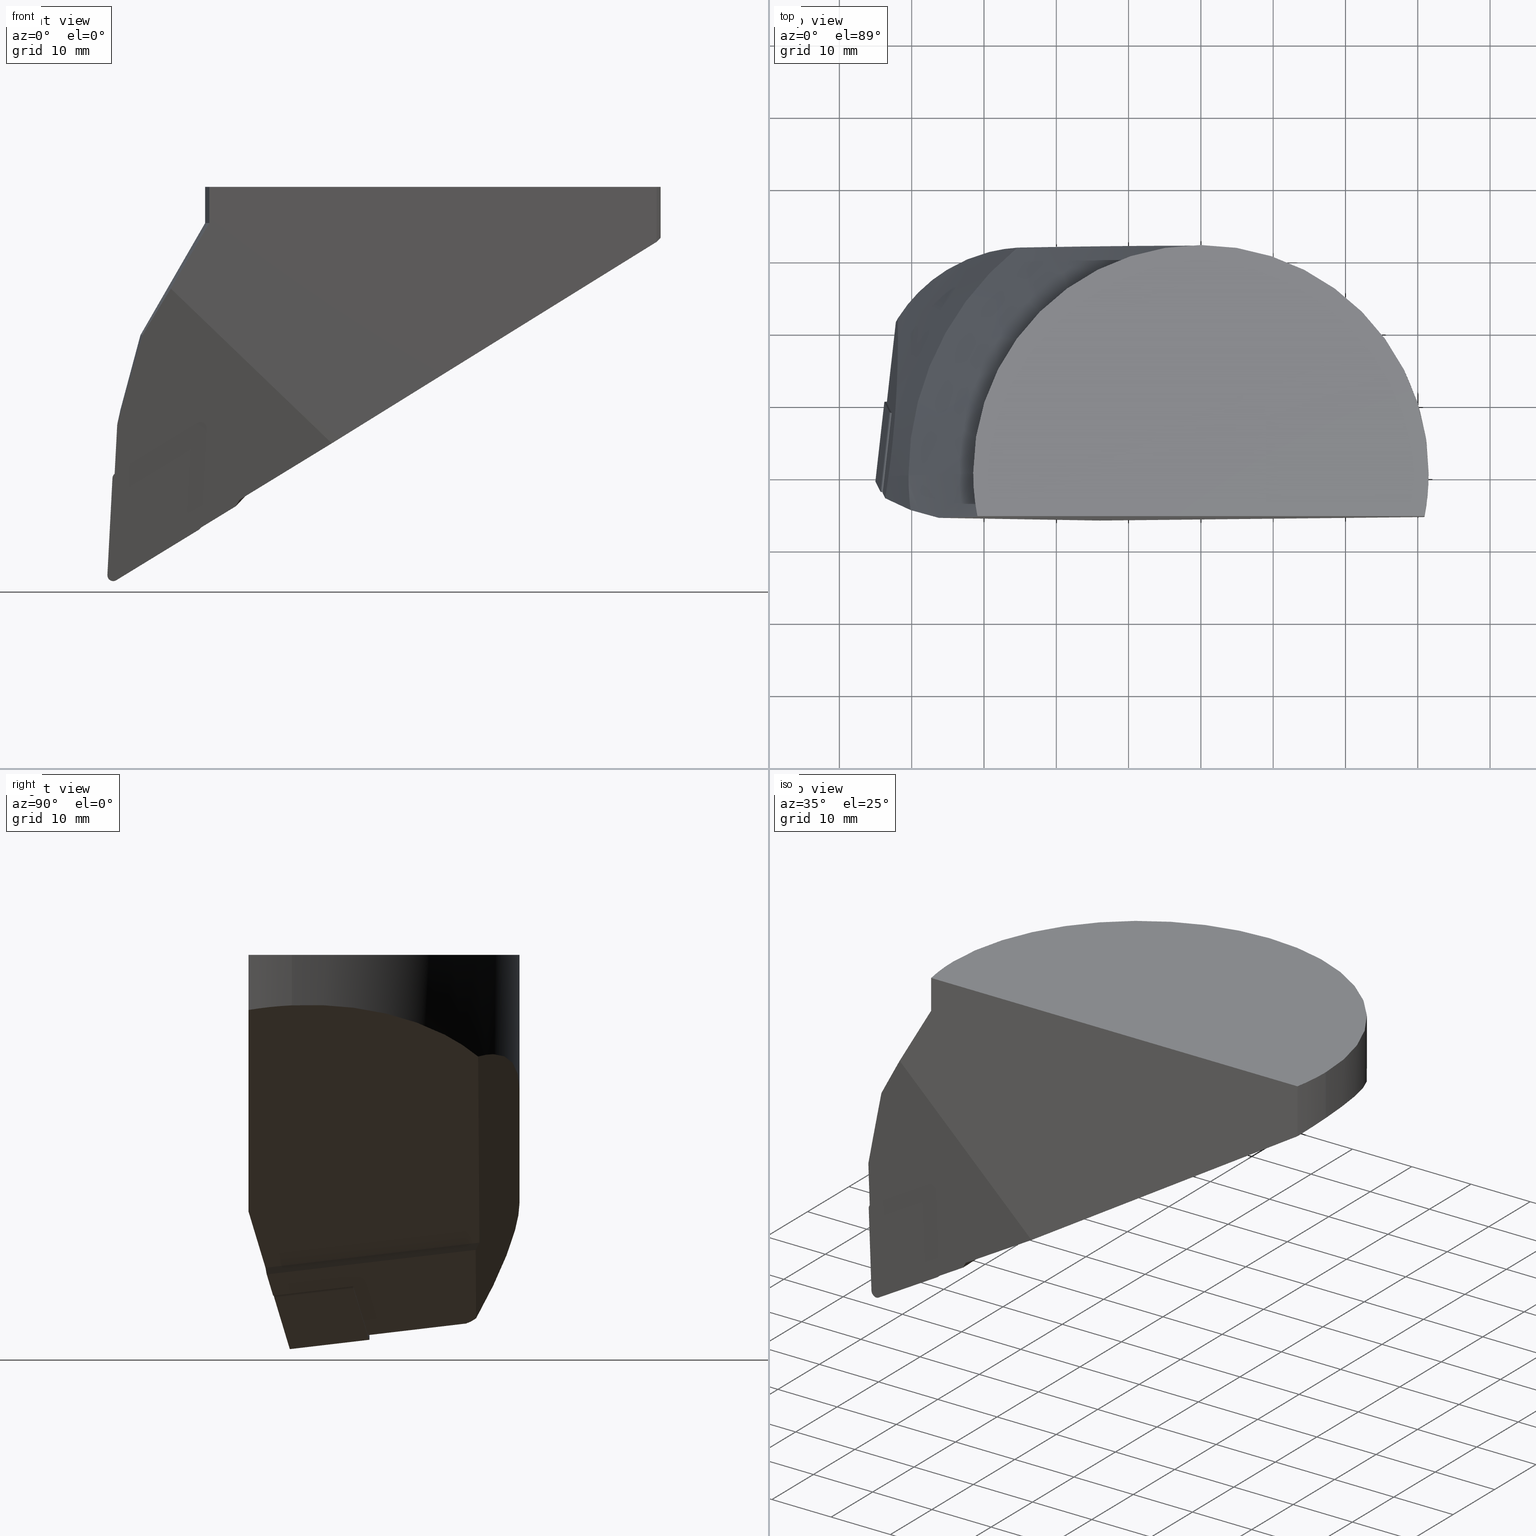
[diagram: canonical four-view strip — front | top / right | iso, engineering-drawing reading convention]
A machine part, canonical four-view strip (front | top / right | iso — engineering-drawing reading convention). The complete STEP part file that produces these views, byte-faithful:
ISO-10303-21;
HEADER;
FILE_DESCRIPTION((''),'1');
FILE_NAME('//Big_tech03/bigt/Translate/11_3D_Field/02_Step_Field/91_\X2\65CB524A30C430FC30EB\X0\/F\X2\30AB30FC30C830EA30C330B8\X0\/F63-DDJNL-45055-15.stp','2012-12-17T05:40:42',(''),(''),'Spatial Interop R18','Kubotek KeyCreator V8.5.1 (14335)',' ');
FILE_SCHEMA(('CONFIG_CONTROL_DESIGN'));
ENDSEC;
DATA;
#1=DESIGN_CONTEXT('',#27,'design');
#2=APPLICATION_PROTOCOL_DEFINITION('INTERNATIONAL STANDARD','config_control_design',1994,#27);
#3=PRODUCT_CATEGORY_RELATIONSHIP('NONE','NONE',#28,#29);
#4=DATE_AND_TIME(#30,#31);
#5=DATE_TIME_ROLE('creation_date');
#6=DATE_TIME_ROLE('classification_date');
#7=PERSON_AND_ORGANIZATION_ROLE('creator');
#8=PERSON_AND_ORGANIZATION_ROLE('design_supplier');
#9=PERSON_AND_ORGANIZATION_ROLE('classification_officer');
#10=PERSON_AND_ORGANIZATION_ROLE('design_owner');
#11=APPROVAL_PERSON_ORGANIZATION(#32,#33,#34);
#12=APPROVAL_DATE_TIME(#4,#33);
#13=CC_DESIGN_APPROVAL(#33,(#35,#36,#37));
#14=CC_DESIGN_DATE_AND_TIME_ASSIGNMENT(#4,#5,(#37));
#15=CC_DESIGN_DATE_AND_TIME_ASSIGNMENT(#4,#6,(#35));
#16=CC_DESIGN_PERSON_AND_ORGANIZATION_ASSIGNMENT(#32,#10,(#38));
#17=CC_DESIGN_PERSON_AND_ORGANIZATION_ASSIGNMENT(#32,#7,(#37));
#18=CC_DESIGN_PERSON_AND_ORGANIZATION_ASSIGNMENT(#32,#7,(#36));
#19=CC_DESIGN_PERSON_AND_ORGANIZATION_ASSIGNMENT(#32,#8,(#36));
#20=CC_DESIGN_SECURITY_CLASSIFICATION(#35,(#36));
#21=CC_DESIGN_PERSON_AND_ORGANIZATION_ASSIGNMENT(#32,#9,(#35));
#22=SHAPE_DEFINITION_REPRESENTATION(#39,#40);
#23= (GEOMETRIC_REPRESENTATION_CONTEXT(3)GLOBAL_UNCERTAINTY_ASSIGNED_CONTEXT((#43))GLOBAL_UNIT_ASSIGNED_CONTEXT((#45,#46,#47))REPRESENTATION_CONTEXT('NONE','WORKSPACE'));
#27=APPLICATION_CONTEXT('CONFIGURATION CONTROLLED 3D DESIGNS OF MECHANICAL PARTS AND ASSEMBLIES');
#28=PRODUCT_CATEGORY('part','NONE');
#29=PRODUCT_RELATED_PRODUCT_CATEGORY('detail',' ',(#38));
#30=CALENDAR_DATE(2012,17,11);
#31=LOCAL_TIME(14,40,42.0,#49);
#32=PERSON_AND_ORGANIZATION(#50,#51);
#33=APPROVAL(#52,'SOLID MODEL');
#34=APPROVAL_ROLE('APPROVED');
#35=SECURITY_CLASSIFICATION('','',#53);
#36=PRODUCT_DEFINITION_FORMATION_WITH_SPECIFIED_SOURCE(' ','NONE',#38,.NOT_KNOWN.);
#37=PRODUCT_DEFINITION('NONE','NONE',#36,#1);
#38=PRODUCT('1','1','PART-1-DESC',(#54));
#39=PRODUCT_DEFINITION_SHAPE('NONE','NONE',#37);
#40=ADVANCED_BREP_SHAPE_REPRESENTATION('1',(#55,#56),#23);
#43=UNCERTAINTY_MEASURE_WITH_UNIT(LENGTH_MEASURE(1.0E-006),#45,'','');
#45= (CONVERSION_BASED_UNIT('MILLIMETRE',#59)LENGTH_UNIT()NAMED_UNIT(#62));
#46= (NAMED_UNIT(#64)PLANE_ANGLE_UNIT()SI_UNIT($,.RADIAN.));
#47= (NAMED_UNIT(#64)SOLID_ANGLE_UNIT()SI_UNIT($,.STERADIAN.));
#49=COORDINATED_UNIVERSAL_TIME_OFFSET(9,0,.AHEAD.);
#50=PERSON('','UNSPECIFIED',$,$,$,$);
#51=ORGANIZATION('UNSPECIFIED','UNSPECIFIED','UNSPECIFIED');
#52=APPROVAL_STATUS('approved');
#53=SECURITY_CLASSIFICATION_LEVEL('unclassified');
#54=MECHANICAL_CONTEXT('',#27,'mechanical');
#55=MANIFOLD_SOLID_BREP('1',#70);
#56=AXIS2_PLACEMENT_3D('',#71,#72,#73);
#59=LENGTH_MEASURE_WITH_UNIT(LENGTH_MEASURE(1.0),#74);
#62=DIMENSIONAL_EXPONENTS(1.0,0.0,0.0,0.0,0.0,0.0,0.0);
#64=DIMENSIONAL_EXPONENTS(0.0,0.0,0.0,0.0,0.0,0.0,0.0);
#70=CLOSED_SHELL('',(#75,#76,#77,#78,#79,#80,#81,#82,#83,#84,#85,#86,#87,#88,#89,#90,#91,#92,#93,#94,#95,#96,#97,#98,#99,#100,#101,#102,#103,#104));
#71=CARTESIAN_POINT('',(0.0,0.0,0.0));
#72=DIRECTION('',(0.0,0.0,1.0));
#73=DIRECTION('',(1.0,0.0,0.0));
#74= (NAMED_UNIT(#62)LENGTH_UNIT()SI_UNIT(.MILLI.,.METRE.));
#75=ADVANCED_FACE('',(#106),#107,.T.);
#76=ADVANCED_FACE('',(#108),#109,.T.);
#77=ADVANCED_FACE('',(#110),#111,.T.);
#78=ADVANCED_FACE('',(#112),#113,.T.);
#79=ADVANCED_FACE('',(#114),#115,.T.);
#80=ADVANCED_FACE('',(#116),#117,.T.);
#81=ADVANCED_FACE('',(#118),#119,.F.);
#82=ADVANCED_FACE('',(#120),#121,.F.);
#83=ADVANCED_FACE('',(#122),#123,.F.);
#84=ADVANCED_FACE('',(#124),#125,.F.);
#85=ADVANCED_FACE('',(#126),#127,.F.);
#86=ADVANCED_FACE('',(#128),#129,.F.);
#87=ADVANCED_FACE('',(#130),#131,.F.);
#88=ADVANCED_FACE('',(#132),#133,.F.);
#89=ADVANCED_FACE('',(#134),#135,.F.);
#90=ADVANCED_FACE('',(#136),#137,.F.);
#91=ADVANCED_FACE('',(#138),#139,.T.);
#92=ADVANCED_FACE('',(#140),#141,.F.);
#93=ADVANCED_FACE('',(#142),#143,.F.);
#94=ADVANCED_FACE('',(#144),#145,.T.);
#95=ADVANCED_FACE('',(#146),#147,.T.);
#96=ADVANCED_FACE('',(#148),#149,.T.);
#97=ADVANCED_FACE('',(#150),#151,.T.);
#98=ADVANCED_FACE('',(#152),#153,.T.);
#99=ADVANCED_FACE('',(#154),#155,.T.);
#100=ADVANCED_FACE('',(#156),#157,.T.);
#101=ADVANCED_FACE('',(#158),#159,.T.);
#102=ADVANCED_FACE('',(#160),#161,.F.);
#103=ADVANCED_FACE('',(#162),#163,.F.);
#104=ADVANCED_FACE('',(#164),#165,.F.);
#106=FACE_OUTER_BOUND('',#166,.T.);
#107=CYLINDRICAL_SURFACE('',#167,0.79999999991267);
#108=FACE_OUTER_BOUND('',#168,.T.);
#109=PLANE('',#169);
#110=FACE_OUTER_BOUND('',#170,.T.);
#111=CYLINDRICAL_SURFACE('',#171,0.800000000088561);
#112=FACE_OUTER_BOUND('',#172,.T.);
#113=PLANE('',#173);
#114=FACE_OUTER_BOUND('',#174,.T.);
#115=CYLINDRICAL_SURFACE('',#175,0.8);
#116=FACE_OUTER_BOUND('',#176,.T.);
#117=PLANE('',#177);
#118=FACE_OUTER_BOUND('',#178,.T.);
#119=PLANE('',#179);
#120=FACE_OUTER_BOUND('',#180,.T.);
#121=CYLINDRICAL_SURFACE('',#181,0.79999999991267);
#122=FACE_OUTER_BOUND('',#182,.T.);
#123=PLANE('',#183);
#124=FACE_OUTER_BOUND('',#184,.T.);
#125=CYLINDRICAL_SURFACE('',#185,0.799999998553734);
#126=FACE_OUTER_BOUND('',#186,.T.);
#127=PLANE('',#187);
#128=FACE_OUTER_BOUND('',#188,.T.);
#129=CYLINDRICAL_SURFACE('',#189,0.800000000088561);
#130=FACE_OUTER_BOUND('',#190,.T.);
#131=PLANE('',#191);
#132=FACE_OUTER_BOUND('',#192,.T.);
#133=PLANE('',#193);
#134=FACE_OUTER_BOUND('',#194,.T.);
#135=PLANE('',#195);
#136=FACE_OUTER_BOUND('',#196,.T.);
#137=PLANE('',#197);
#138=FACE_OUTER_BOUND('',#198,.T.);
#139=CYLINDRICAL_SURFACE('',#199,1.2);
#140=FACE_OUTER_BOUND('',#200,.T.);
#141=PLANE('',#201);
#142=FACE_OUTER_BOUND('',#202,.T.);
#143=PLANE('',#203);
#144=FACE_OUTER_BOUND('',#204,.T.);
#145=CYLINDRICAL_SURFACE('',#205,20.0);
#146=FACE_OUTER_BOUND('',#206,.T.);
#147=CONICAL_SURFACE('',#207,32.7734697469781,0.5235987744017);
#148=FACE_OUTER_BOUND('',#208,.T.);
#149=CYLINDRICAL_SURFACE('',#209,31.5);
#150=FACE_OUTER_BOUND('',#210,.T.);
#151=CYLINDRICAL_SURFACE('',#211,31.5);
#152=FACE_OUTER_BOUND('',#212,.T.);
#153=CONICAL_SURFACE('',#213,41.4446882568336,0.261799387200851);
#154=FACE_OUTER_BOUND('',#214,.T.);
#155=CONICAL_SURFACE('',#215,40.9227443414967,0.261799387200848);
#156=FACE_OUTER_BOUND('',#216,.T.);
#157=CYLINDRICAL_SURFACE('',#217,31.5);
#158=FACE_OUTER_BOUND('',#218,.T.);
#159=CONICAL_SURFACE('',#219,32.7777316670796,0.523598774401699);
#160=FACE_OUTER_BOUND('',#220,.T.);
#161=PLANE('',#221);
#162=FACE_OUTER_BOUND('',#222,.T.);
#163=PLANE('',#223);
#164=FACE_OUTER_BOUND('',#224,.T.);
#165=PLANE('',#225);
#166=EDGE_LOOP('',(#226,#227,#228,#229));
#167=AXIS2_PLACEMENT_3D('',#230,#231,#232);
#168=EDGE_LOOP('',(#233,#234,#235,#236,#237,#238,#239,#240));
#169=AXIS2_PLACEMENT_3D('',#241,#242,#243);
#170=EDGE_LOOP('',(#244,#245,#246,#247));
#171=AXIS2_PLACEMENT_3D('',#248,#249,#250);
#172=EDGE_LOOP('',(#251,#252,#253,#254));
#173=AXIS2_PLACEMENT_3D('',#255,#256,#257);
#174=EDGE_LOOP('',(#258,#259,#260,#261));
#175=AXIS2_PLACEMENT_3D('',#262,#263,#264);
#176=EDGE_LOOP('',(#265,#266,#267,#268));
#177=AXIS2_PLACEMENT_3D('',#269,#270,#271);
#178=EDGE_LOOP('',(#272,#273,#274,#275,#276,#277,#278,#279,#280,#281));
#179=AXIS2_PLACEMENT_3D('',#282,#283,#284);
#180=EDGE_LOOP('',(#285,#286,#287,#288));
#181=AXIS2_PLACEMENT_3D('',#289,#290,#291);
#182=EDGE_LOOP('',(#292,#293,#294,#295));
#183=AXIS2_PLACEMENT_3D('',#296,#297,#298);
#184=EDGE_LOOP('',(#299,#300,#301,#302));
#185=AXIS2_PLACEMENT_3D('',#303,#304,#305);
#186=EDGE_LOOP('',(#306,#307,#308,#309));
#187=AXIS2_PLACEMENT_3D('',#310,#311,#312);
#188=EDGE_LOOP('',(#313,#314,#315,#316));
#189=AXIS2_PLACEMENT_3D('',#317,#318,#319);
#190=EDGE_LOOP('',(#320,#321,#322,#323,#324,#325,#326,#327));
#191=AXIS2_PLACEMENT_3D('',#328,#329,#330);
#192=EDGE_LOOP('',(#331,#332,#333,#334,#335,#336,#337,#338,#339,#340,#341,#342));
#193=AXIS2_PLACEMENT_3D('',#343,#344,#345);
#194=EDGE_LOOP('',(#346,#347,#348,#349));
#195=AXIS2_PLACEMENT_3D('',#350,#351,#352);
#196=EDGE_LOOP('',(#353,#354,#355,#356,#357,#358,#359,#360));
#197=AXIS2_PLACEMENT_3D('',#361,#362,#363);
#198=EDGE_LOOP('',(#364,#365,#366,#367));
#199=AXIS2_PLACEMENT_3D('',#368,#369,#370);
#200=EDGE_LOOP('',(#371,#372,#373,#374,#375,#376));
#201=AXIS2_PLACEMENT_3D('',#377,#378,#379);
#202=EDGE_LOOP('',(#380,#381,#382,#383,#384,#385));
#203=AXIS2_PLACEMENT_3D('',#386,#387,#388);
#204=EDGE_LOOP('',(#389,#390,#391,#392,#393,#394,#395));
#205=AXIS2_PLACEMENT_3D('',#396,#397,#398);
#206=EDGE_LOOP('',(#399,#400,#401,#402,#403));
#207=AXIS2_PLACEMENT_3D('',#404,#405,#406);
#208=EDGE_LOOP('',(#407,#408,#409,#410));
#209=AXIS2_PLACEMENT_3D('',#411,#412,#413);
#210=EDGE_LOOP('',(#414,#415,#416,#417,#418,#419,#420));
#211=AXIS2_PLACEMENT_3D('',#421,#422,#423);
#212=EDGE_LOOP('',(#424,#425,#426,#427));
#213=AXIS2_PLACEMENT_3D('',#428,#429,#430);
#214=EDGE_LOOP('',(#431,#432,#433,#434));
#215=AXIS2_PLACEMENT_3D('',#435,#436,#437);
#216=EDGE_LOOP('',(#438,#439,#440,#441));
#217=AXIS2_PLACEMENT_3D('',#442,#443,#444);
#218=EDGE_LOOP('',(#445,#446,#447,#448,#449));
#219=AXIS2_PLACEMENT_3D('',#450,#451,#452);
#220=EDGE_LOOP('',(#453,#454,#455,#456,#457,#458));
#221=AXIS2_PLACEMENT_3D('',#459,#460,#461);
#222=EDGE_LOOP('',(#462,#463,#464,#465));
#223=AXIS2_PLACEMENT_3D('',#466,#467,#468);
#224=EDGE_LOOP('',(#469,#470,#471,#472));
#225=AXIS2_PLACEMENT_3D('',#473,#474,#475);
#226=ORIENTED_EDGE('',*,*,#476,.F.);
#227=ORIENTED_EDGE('',*,*,#477,.T.);
#228=ORIENTED_EDGE('',*,*,#478,.T.);
#229=ORIENTED_EDGE('',*,*,#479,.T.);
#230=CARTESIAN_POINT('',(-42.2867356888013,8.96139082365023,-39.0195481658553));
#231=DIRECTION('',(0.111468932180646,0.986981129763168,0.115943635659434));
#232=DIRECTION('',(-0.52665651322258,-0.0402689242801202,0.849123860704407));
#233=ORIENTED_EDGE('',*,*,#480,.F.);
#234=ORIENTED_EDGE('',*,*,#481,.F.);
#235=ORIENTED_EDGE('',*,*,#482,.F.);
#236=ORIENTED_EDGE('',*,*,#483,.F.);
#237=ORIENTED_EDGE('',*,*,#484,.F.);
#238=ORIENTED_EDGE('',*,*,#485,.F.);
#239=ORIENTED_EDGE('',*,*,#486,.F.);
#240=ORIENTED_EDGE('',*,*,#477,.F.);
#241=CARTESIAN_POINT('',(-40.1349317521262,9.72640476037006,-47.6005591111563));
#242=DIRECTION('',(0.111468932180646,0.986981129763168,0.115943635659434));
#243=DIRECTION('',(-2.47510750074666E-018,-0.11667073712445,0.993170649535535));
#244=ORIENTED_EDGE('',*,*,#487,.F.);
#245=ORIENTED_EDGE('',*,*,#488,.T.);
#246=ORIENTED_EDGE('',*,*,#489,.F.);
#247=ORIENTED_EDGE('',*,*,#483,.T.);
#248=CARTESIAN_POINT('',(-31.5712593598917,8.50861803219409,-45.4672026550503));
#249=DIRECTION('',(0.111468932180646,0.986981129763168,0.115943635659434));
#250=DIRECTION('',(0.526656513222572,0.0402689242801216,-0.849123860704411));
#251=ORIENTED_EDGE('',*,*,#490,.T.);
#252=ORIENTED_EDGE('',*,*,#491,.F.);
#253=ORIENTED_EDGE('',*,*,#484,.T.);
#254=ORIENTED_EDGE('',*,*,#489,.T.);
#255=CARTESIAN_POINT('',(-31.149934149267,8.54083317162176,-46.146501743689));
#256=DIRECTION('',(0.526656513222578,0.0402689242801206,-0.849123860704408));
#257=DIRECTION('',(-0.849813162933969,0.0,-0.52708404273338));
#258=ORIENTED_EDGE('',*,*,#492,.T.);
#259=ORIENTED_EDGE('',*,*,#493,.F.);
#260=ORIENTED_EDGE('',*,*,#485,.T.);
#261=ORIENTED_EDGE('',*,*,#491,.T.);
#262=CARTESIAN_POINT('',(-42.9908652335308,10.6186277213044,-52.4499789799973));
#263=DIRECTION('',(0.111468932180646,0.986981129763168,0.115943635659434));
#264=DIRECTION('',(-0.99240844672796,0.104455644609549,0.0649191279377818));
#265=ORIENTED_EDGE('',*,*,#494,.T.);
#266=ORIENTED_EDGE('',*,*,#478,.F.);
#267=ORIENTED_EDGE('',*,*,#486,.T.);
#268=ORIENTED_EDGE('',*,*,#493,.T.);
#269=CARTESIAN_POINT('',(-43.7847919909132,10.7021922369921,-52.398043677647));
#270=DIRECTION('',(-0.99240844672796,0.10445564460955,0.0649191279377771));
#271=DIRECTION('',(0.0652762184737183,0.0,0.997867233303996));
#272=ORIENTED_EDGE('',*,*,#479,.F.);
#273=ORIENTED_EDGE('',*,*,#494,.F.);
#274=ORIENTED_EDGE('',*,*,#492,.F.);
#275=ORIENTED_EDGE('',*,*,#490,.F.);
#276=ORIENTED_EDGE('',*,*,#488,.F.);
#277=ORIENTED_EDGE('',*,*,#495,.F.);
#278=ORIENTED_EDGE('',*,*,#496,.F.);
#279=ORIENTED_EDGE('',*,*,#497,.F.);
#280=ORIENTED_EDGE('',*,*,#498,.F.);
#281=ORIENTED_EDGE('',*,*,#499,.F.);
#282=CARTESIAN_POINT('',(-41.3733515886532,-1.23895559129873,-48.8886929033327));
#283=DIRECTION('',(0.111468932180646,0.986981129763168,0.115943635659434));
#284=DIRECTION('',(-3.08228190069457E-018,-0.11667073712445,0.993170649535535));
#285=ORIENTED_EDGE('',*,*,#499,.T.);
#286=ORIENTED_EDGE('',*,*,#500,.F.);
#287=ORIENTED_EDGE('',*,*,#501,.F.);
#288=ORIENTED_EDGE('',*,*,#502,.F.);
#289=CARTESIAN_POINT('',(-43.5351877292246,-2.09279782969725,-40.3181168852409));
#290=DIRECTION('',(-0.111468932180646,-0.986981129763168,-0.115943635659434));
#291=DIRECTION('',(-0.526656513222582,-0.0402689242801199,0.849123860704405));
#292=ORIENTED_EDGE('',*,*,#498,.T.);
#293=ORIENTED_EDGE('',*,*,#503,.F.);
#294=ORIENTED_EDGE('',*,*,#504,.F.);
#295=ORIENTED_EDGE('',*,*,#500,.T.);
#296=CARTESIAN_POINT('',(-32.5369070666313,-4.23502265812108,-32.6560414722223));
#297=DIRECTION('',(-0.526656513222585,-0.0402689242801193,0.849123860704403));
#298=DIRECTION('',(0.849813162933964,3.57659895301403E-018,0.527084042733387));
#299=ORIENTED_EDGE('',*,*,#497,.T.);
#300=ORIENTED_EDGE('',*,*,#505,.F.);
#301=ORIENTED_EDGE('',*,*,#506,.F.);
#302=ORIENTED_EDGE('',*,*,#503,.T.);
#303=CARTESIAN_POINT('',(-32.1155818568149,-4.20280751875522,-33.3353405595578));
#304=DIRECTION('',(-0.111468932180646,-0.986981129763168,-0.115943635659434));
#305=DIRECTION('',(0.992408446727965,-0.104455644609561,-0.0649191279376823));
#306=ORIENTED_EDGE('',*,*,#496,.T.);
#307=ORIENTED_EDGE('',*,*,#507,.F.);
#308=ORIENTED_EDGE('',*,*,#508,.F.);
#309=ORIENTED_EDGE('',*,*,#505,.T.);
#310=CARTESIAN_POINT('',(-32.0257846428447,-2.62913513685027,-46.817706676792));
#311=DIRECTION('',(0.992408446739063,-0.104455644635682,-0.0649191277259921));
#312=DIRECTION('',(-0.0652762182609486,0.0,-0.997867233317914));
#313=ORIENTED_EDGE('',*,*,#495,.T.);
#314=ORIENTED_EDGE('',*,*,#509,.F.);
#315=ORIENTED_EDGE('',*,*,#510,.F.);
#316=ORIENTED_EDGE('',*,*,#507,.T.);
#317=CARTESIAN_POINT('',(-32.8197114003149,-2.54557062115339,-46.765771374436));
#318=DIRECTION('',(-0.111468932180646,-0.986981129763168,-0.115943635659434));
#319=DIRECTION('',(0.526656513222571,0.0402689242801219,-0.849123860704412));
#320=ORIENTED_EDGE('',*,*,#480,.T.);
#321=ORIENTED_EDGE('',*,*,#476,.T.);
#322=ORIENTED_EDGE('',*,*,#502,.T.);
#323=ORIENTED_EDGE('',*,*,#511,.F.);
#324=ORIENTED_EDGE('',*,*,#512,.T.);
#325=ORIENTED_EDGE('',*,*,#513,.T.);
#326=ORIENTED_EDGE('',*,*,#514,.T.);
#327=ORIENTED_EDGE('',*,*,#515,.T.);
#328=CARTESIAN_POINT('',(-42.763103545582,9.56168043469738,-39.2346902608723));
#329=DIRECTION('',(0.992405994765367,-0.10444987619445,-0.0649658750170119));
#330=DIRECTION('',(-0.0653231828941872,1.15962657470325E-018,-0.997864159981995));
#331=ORIENTED_EDGE('',*,*,#501,.T.);
#332=ORIENTED_EDGE('',*,*,#504,.T.);
#333=ORIENTED_EDGE('',*,*,#506,.T.);
#334=ORIENTED_EDGE('',*,*,#508,.T.);
#335=ORIENTED_EDGE('',*,*,#510,.T.);
#336=ORIENTED_EDGE('',*,*,#516,.T.);
#337=ORIENTED_EDGE('',*,*,#517,.T.);
#338=ORIENTED_EDGE('',*,*,#518,.T.);
#339=ORIENTED_EDGE('',*,*,#519,.T.);
#340=ORIENTED_EDGE('',*,*,#520,.T.);
#341=ORIENTED_EDGE('',*,*,#521,.T.);
#342=ORIENTED_EDGE('',*,*,#511,.T.);
#343=CARTESIAN_POINT('',(-29.3810164501964,-4.3997327054566,-34.2880245251443));
#344=DIRECTION('',(0.111468932180646,0.986981129763168,0.115943635659434));
#345=DIRECTION('',(0.0,-0.11667073712445,0.993170649535535));
#346=ORIENTED_EDGE('',*,*,#522,.F.);
#347=ORIENTED_EDGE('',*,*,#523,.F.);
#348=ORIENTED_EDGE('',*,*,#517,.F.);
#349=ORIENTED_EDGE('',*,*,#524,.T.);
#350=CARTESIAN_POINT('',(-26.7460524175475,-3.64141581830545,-43.2765393248173));
#351=DIRECTION('',(-0.856259417863984,0.036174083362437,0.515277832835956));
#352=DIRECTION('',(0.515615301161498,0.0,0.85682020354806));
#353=ORIENTED_EDGE('',*,*,#482,.T.);
#354=ORIENTED_EDGE('',*,*,#525,.T.);
#355=ORIENTED_EDGE('',*,*,#526,.F.);
#356=ORIENTED_EDGE('',*,*,#527,.F.);
#357=ORIENTED_EDGE('',*,*,#524,.F.);
#358=ORIENTED_EDGE('',*,*,#516,.F.);
#359=ORIENTED_EDGE('',*,*,#509,.T.);
#360=ORIENTED_EDGE('',*,*,#487,.T.);
#361=CARTESIAN_POINT('',(-27.2922103575996,-3.47171817841497,-44.1960268443463));
#362=DIRECTION('',(-0.526616764544048,-0.0402762685221401,0.849148164630349));
#363=DIRECTION('',(0.849837738355611,0.0,0.527044417925681));
#364=ORIENTED_EDGE('',*,*,#481,.T.);
#365=ORIENTED_EDGE('',*,*,#515,.F.);
#366=ORIENTED_EDGE('',*,*,#528,.F.);
#367=ORIENTED_EDGE('',*,*,#525,.F.);
#368=CARTESIAN_POINT('',(-43.5095631015106,-0.640440576507991,-52.7060806082363));
#369=DIRECTION('',(-0.111468932180646,-0.986981129763168,-0.115943635659434));
#370=DIRECTION('',(-0.992405994768391,0.104449876167681,0.0649658750138626));
#371=ORIENTED_EDGE('',*,*,#529,.F.);
#372=ORIENTED_EDGE('',*,*,#530,.F.);
#373=ORIENTED_EDGE('',*,*,#531,.F.);
#374=ORIENTED_EDGE('',*,*,#532,.F.);
#375=ORIENTED_EDGE('',*,*,#518,.F.);
#376=ORIENTED_EDGE('',*,*,#523,.T.);
#377=CARTESIAN_POINT('',(40.9335810236479,-16.1461145803022,-1.89673254103982));
#378=DIRECTION('',(-0.526616764544051,-0.0402762685221395,0.849148164630347));
#379=DIRECTION('',(0.849837738355609,3.57725125274118E-018,0.527044417925685));
#380=ORIENTED_EDGE('',*,*,#529,.T.);
#381=ORIENTED_EDGE('',*,*,#522,.T.);
#382=ORIENTED_EDGE('',*,*,#527,.T.);
#383=ORIENTED_EDGE('',*,*,#533,.T.);
#384=ORIENTED_EDGE('',*,*,#534,.T.);
#385=ORIENTED_EDGE('',*,*,#535,.T.);
#386=CARTESIAN_POINT('',(-11.2666437124819,26.9188179307469,-31.0688416532903));
#387=DIRECTION('',(-0.374709505220685,-0.707106781186548,0.599660559564549));
#388=DIRECTION('',(0.848048096156426,0.0,0.529919264233206));
#389=ORIENTED_EDGE('',*,*,#526,.T.);
#390=ORIENTED_EDGE('',*,*,#528,.T.);
#391=ORIENTED_EDGE('',*,*,#514,.F.);
#392=ORIENTED_EDGE('',*,*,#536,.T.);
#393=ORIENTED_EDGE('',*,*,#537,.T.);
#394=ORIENTED_EDGE('',*,*,#538,.T.);
#395=ORIENTED_EDGE('',*,*,#533,.F.);
#396=CARTESIAN_POINT('',(-25.0,11.5,-45.1525124915259));
#397=DIRECTION('',(-0.0,-0.0,-1.0));
#398=DIRECTION('',(-0.868594311794106,-0.495523885921681,0.0));
#399=ORIENTED_EDGE('',*,*,#539,.F.);
#400=ORIENTED_EDGE('',*,*,#540,.F.);
#401=ORIENTED_EDGE('',*,*,#541,.T.);
#402=ORIENTED_EDGE('',*,*,#537,.F.);
#403=ORIENTED_EDGE('',*,*,#542,.T.);
#404=CARTESIAN_POINT('',(-4.44089209850063E-015,-2.77555756156289E-014,-7.2057142883466));
#405=DIRECTION('',(0.0,-0.0,-1.0));
#406=DIRECTION('',(0.707106781186548,0.707106781186547,0.0));
#407=ORIENTED_EDGE('',*,*,#531,.T.);
#408=ORIENTED_EDGE('',*,*,#543,.T.);
#409=ORIENTED_EDGE('',*,*,#544,.T.);
#410=ORIENTED_EDGE('',*,*,#545,.F.);
#411=CARTESIAN_POINT('',(9.99200722162641E-015,4.44089209850063E-015,-1.59042803573396));
#412=DIRECTION('',(0.0,-0.0,1.0));
#413=DIRECTION('',(-0.095677020168762,-0.9954124310112,0.0));
#414=ORIENTED_EDGE('',*,*,#530,.T.);
#415=ORIENTED_EDGE('',*,*,#535,.F.);
#416=ORIENTED_EDGE('',*,*,#546,.T.);
#417=ORIENTED_EDGE('',*,*,#540,.T.);
#418=ORIENTED_EDGE('',*,*,#547,.F.);
#419=ORIENTED_EDGE('',*,*,#548,.T.);
#420=ORIENTED_EDGE('',*,*,#543,.F.);
#421=CARTESIAN_POINT('',(9.99200722162641E-015,4.44089209850063E-015,-3.7253260681091));
#422=DIRECTION('',(-0.0,-0.0,1.0));
#423=DIRECTION('',(0.0,-1.0,0.0));
#424=ORIENTED_EDGE('',*,*,#549,.F.);
#425=ORIENTED_EDGE('',*,*,#542,.F.);
#426=ORIENTED_EDGE('',*,*,#536,.F.);
#427=ORIENTED_EDGE('',*,*,#513,.F.);
#428=CARTESIAN_POINT('',(-1.77635683940025E-014,1.09912079437891E-013,-24.2162234327539));
#429=DIRECTION('',(0.0,-0.0,-1.0));
#430=DIRECTION('',(0.43160606370639,0.902062196177113,0.0));
#431=ORIENTED_EDGE('',*,*,#549,.T.);
#432=ORIENTED_EDGE('',*,*,#512,.F.);
#433=ORIENTED_EDGE('',*,*,#521,.F.);
#434=ORIENTED_EDGE('',*,*,#550,.F.);
#435=CARTESIAN_POINT('',(-8.88178419700125E-015,-3.33066907387547E-015,-22.2683022173536));
#436=DIRECTION('',(-0.0,0.0,-1.0));
#437=DIRECTION('',(-0.0594609768234945,0.998230630783886,0.0));
#438=ORIENTED_EDGE('',*,*,#547,.T.);
#439=ORIENTED_EDGE('',*,*,#551,.T.);
#440=ORIENTED_EDGE('',*,*,#552,.F.);
#441=ORIENTED_EDGE('',*,*,#553,.T.);
#442=CARTESIAN_POINT('',(9.99200722162641E-015,4.44089209850063E-015,-1.00000000214165));
#443=DIRECTION('',(-0.0,-0.0,1.0));
#444=DIRECTION('',(-0.0956770201687619,0.9954124310112,0.0));
#445=ORIENTED_EDGE('',*,*,#539,.T.);
#446=ORIENTED_EDGE('',*,*,#550,.T.);
#447=ORIENTED_EDGE('',*,*,#520,.F.);
#448=ORIENTED_EDGE('',*,*,#554,.F.);
#449=ORIENTED_EDGE('',*,*,#551,.F.);
#450=CARTESIAN_POINT('',(0.0,1.66533453693773E-015,-7.21309615052056));
#451=DIRECTION('',(-0.0,0.0,-1.0));
#452=DIRECTION('',(-0.0956770201687709,0.995412431011199,0.0));
#453=ORIENTED_EDGE('',*,*,#532,.T.);
#454=ORIENTED_EDGE('',*,*,#545,.T.);
#455=ORIENTED_EDGE('',*,*,#555,.T.);
#456=ORIENTED_EDGE('',*,*,#552,.T.);
#457=ORIENTED_EDGE('',*,*,#554,.T.);
#458=ORIENTED_EDGE('',*,*,#519,.F.);
#459=CARTESIAN_POINT('',(-2.66105753199325,-5.99999999999999,-17.8356899174889));
#460=DIRECTION('',(0.0,1.0,0.0));
#461=DIRECTION('',(0.0,0.0,1.0));
#462=ORIENTED_EDGE('',*,*,#553,.F.);
#463=ORIENTED_EDGE('',*,*,#555,.F.);
#464=ORIENTED_EDGE('',*,*,#544,.F.);
#465=ORIENTED_EDGE('',*,*,#548,.F.);
#466=CARTESIAN_POINT('',(0.0,12.75,0.0));
#467=DIRECTION('',(0.0,0.0,-1.0));
#468=DIRECTION('',(-1.0,0.0,0.0));
#469=ORIENTED_EDGE('',*,*,#534,.F.);
#470=ORIENTED_EDGE('',*,*,#538,.F.);
#471=ORIENTED_EDGE('',*,*,#541,.F.);
#472=ORIENTED_EDGE('',*,*,#546,.F.);
#473=CARTESIAN_POINT('',(-12.5,31.5000000000001,-19.6191820691393));
#474=DIRECTION('',(0.0,-1.0,0.0));
#475=DIRECTION('',(0.0,0.0,-1.0));
#476=EDGE_CURVE('',#556,#557,#558,.T.);
#477=EDGE_CURVE('',#556,#559,#560,.T.);
#478=EDGE_CURVE('',#559,#561,#562,.T.);
#479=EDGE_CURVE('',#561,#557,#563,.T.);
#480=EDGE_CURVE('',#564,#556,#565,.T.);
#481=EDGE_CURVE('',#566,#564,#567,.T.);
#482=EDGE_CURVE('',#568,#566,#569,.T.);
#483=EDGE_CURVE('',#570,#568,#571,.T.);
#484=EDGE_CURVE('',#572,#570,#573,.T.);
#485=EDGE_CURVE('',#574,#572,#575,.T.);
#486=EDGE_CURVE('',#559,#574,#576,.T.);
#487=EDGE_CURVE('',#577,#568,#578,.T.);
#488=EDGE_CURVE('',#577,#579,#580,.T.);
#489=EDGE_CURVE('',#570,#579,#581,.T.);
#490=EDGE_CURVE('',#579,#582,#583,.T.);
#491=EDGE_CURVE('',#572,#582,#584,.T.);
#492=EDGE_CURVE('',#582,#585,#586,.T.);
#493=EDGE_CURVE('',#574,#585,#587,.T.);
#494=EDGE_CURVE('',#585,#561,#588,.T.);
#495=EDGE_CURVE('',#589,#577,#590,.T.);
#496=EDGE_CURVE('',#591,#589,#592,.T.);
#497=EDGE_CURVE('',#593,#591,#594,.T.);
#498=EDGE_CURVE('',#595,#593,#596,.T.);
#499=EDGE_CURVE('',#557,#595,#597,.T.);
#500=EDGE_CURVE('',#598,#595,#599,.T.);
#501=EDGE_CURVE('',#600,#598,#601,.T.);
#502=EDGE_CURVE('',#557,#600,#602,.T.);
#503=EDGE_CURVE('',#603,#593,#604,.T.);
#504=EDGE_CURVE('',#598,#603,#605,.T.);
#505=EDGE_CURVE('',#606,#591,#607,.T.);
#506=EDGE_CURVE('',#603,#606,#608,.T.);
#507=EDGE_CURVE('',#609,#589,#610,.T.);
#508=EDGE_CURVE('',#606,#609,#611,.T.);
#509=EDGE_CURVE('',#612,#577,#613,.T.);
#510=EDGE_CURVE('',#609,#612,#614,.T.);
#511=EDGE_CURVE('',#615,#600,#616,.T.);
#512=EDGE_CURVE('',#615,#617,#618,.T.);
#513=EDGE_CURVE('',#617,#619,#620,.T.);
#514=EDGE_CURVE('',#619,#621,#622,.T.);
#515=EDGE_CURVE('',#621,#564,#623,.T.);
#516=EDGE_CURVE('',#612,#624,#625,.T.);
#517=EDGE_CURVE('',#624,#626,#627,.T.);
#518=EDGE_CURVE('',#626,#628,#629,.T.);
#519=EDGE_CURVE('',#628,#630,#631,.T.);
#520=EDGE_CURVE('',#630,#632,#633,.T.);
#521=EDGE_CURVE('',#632,#615,#634,.T.);
#522=EDGE_CURVE('',#635,#636,#637,.T.);
#523=EDGE_CURVE('',#626,#635,#638,.T.);
#524=EDGE_CURVE('',#624,#636,#639,.T.);
#525=EDGE_CURVE('',#566,#640,#641,.T.);
#526=EDGE_CURVE('',#642,#640,#643,.T.);
#527=EDGE_CURVE('',#636,#642,#644,.T.);
#528=EDGE_CURVE('',#640,#621,#645,.T.);
#529=EDGE_CURVE('',#646,#635,#647,.T.);
#530=EDGE_CURVE('',#648,#646,#649,.T.);
#531=EDGE_CURVE('',#650,#648,#651,.T.);
#532=EDGE_CURVE('',#628,#650,#652,.T.);
#533=EDGE_CURVE('',#642,#653,#654,.T.);
#534=EDGE_CURVE('',#653,#655,#656,.T.);
#535=EDGE_CURVE('',#655,#646,#657,.T.);
#536=EDGE_CURVE('',#619,#658,#659,.T.);
#537=EDGE_CURVE('',#658,#660,#661,.T.);
#538=EDGE_CURVE('',#660,#653,#662,.T.);
#539=EDGE_CURVE('',#663,#664,#665,.T.);
#540=EDGE_CURVE('',#666,#663,#667,.T.);
#541=EDGE_CURVE('',#666,#660,#668,.T.);
#542=EDGE_CURVE('',#658,#664,#669,.T.);
#543=EDGE_CURVE('',#648,#670,#671,.T.);
#544=EDGE_CURVE('',#670,#672,#673,.T.);
#545=EDGE_CURVE('',#650,#672,#674,.T.);
#546=EDGE_CURVE('',#655,#666,#675,.T.);
#547=EDGE_CURVE('',#676,#663,#677,.T.);
#548=EDGE_CURVE('',#676,#670,#678,.T.);
#549=EDGE_CURVE('',#664,#617,#679,.T.);
#550=EDGE_CURVE('',#664,#632,#680,.T.);
#551=EDGE_CURVE('',#663,#681,#682,.T.);
#552=EDGE_CURVE('',#683,#681,#684,.T.);
#553=EDGE_CURVE('',#683,#676,#685,.T.);
#554=EDGE_CURVE('',#681,#630,#686,.T.);
#555=EDGE_CURVE('',#672,#683,#687,.T.);
#556=VERTEX_POINT('',#688);
#557=VERTEX_POINT('',#689);
#558=LINE('',#690,#691);
#559=VERTEX_POINT('',#692);
#560=CIRCLE('',#693,0.79999999991267);
#561=VERTEX_POINT('',#694);
#562=LINE('',#695,#696);
#563=CIRCLE('',#697,0.79999999991267);
#564=VERTEX_POINT('',#698);
#565=LINE('',#699,#700);
#566=VERTEX_POINT('',#701);
#567=CIRCLE('',#702,1.2);
#568=VERTEX_POINT('',#703);
#569=LINE('',#704,#705);
#570=VERTEX_POINT('',#706);
#571=CIRCLE('',#707,0.800000000088561);
#572=VERTEX_POINT('',#708);
#573=LINE('',#709,#710);
#574=VERTEX_POINT('',#711);
#575=CIRCLE('',#712,0.8);
#576=LINE('',#713,#714);
#577=VERTEX_POINT('',#715);
#578=LINE('',#716,#717);
#579=VERTEX_POINT('',#718);
#580=CIRCLE('',#719,0.800000000088561);
#581=LINE('',#720,#721);
#582=VERTEX_POINT('',#722);
#583=LINE('',#723,#724);
#584=LINE('',#725,#726);
#585=VERTEX_POINT('',#727);
#586=CIRCLE('',#728,0.800000000000001);
#587=LINE('',#729,#730);
#588=LINE('',#731,#732);
#589=VERTEX_POINT('',#733);
#590=CIRCLE('',#734,0.800000000088561);
#591=VERTEX_POINT('',#735);
#592=LINE('',#736,#737);
#593=VERTEX_POINT('',#738);
#594=CIRCLE('',#739,0.799999998553734);
#595=VERTEX_POINT('',#740);
#596=LINE('',#741,#742);
#597=CIRCLE('',#743,0.79999999991267);
#598=VERTEX_POINT('',#744);
#599=LINE('',#745,#746);
#600=VERTEX_POINT('',#747);
#601=CIRCLE('',#748,0.79999999991267);
#602=LINE('',#749,#750);
#603=VERTEX_POINT('',#751);
#604=LINE('',#752,#753);
#605=LINE('',#754,#755);
#606=VERTEX_POINT('',#756);
#607=LINE('',#757,#758);
#608=CIRCLE('',#759,0.799999998553734);
#609=VERTEX_POINT('',#760);
#610=LINE('',#761,#762);
#611=LINE('',#763,#764);
#612=VERTEX_POINT('',#765);
#613=LINE('',#766,#767);
#614=CIRCLE('',#768,0.800000000088561);
#615=VERTEX_POINT('',#769);
#616=LINE('',#770,#771);
#617=VERTEX_POINT('',#772);
#618=(B_SPLINE_CURVE(2,(#774,#775,#776),.UNSPECIFIED.,.F.,.F.)B_SPLINE_CURVE_WITH_KNOTS((3,3),(13.8495191771878,18.1659878908771),.UNSPECIFIED.)RATIONAL_B_SPLINE_CURVE((1.05372156434918,1.05885764778238,1.06197686031505))BOUNDED_CURVE()REPRESENTATION_ITEM('')GEOMETRIC_REPRESENTATION_ITEM()CURVE());
#619=VERTEX_POINT('',#783);
#620=(B_SPLINE_CURVE(2,(#785,#786,#787),.UNSPECIFIED.,.F.,.F.)B_SPLINE_CURVE_WITH_KNOTS((3,3),(18.1659878908771,49.4266189342381),.UNSPECIFIED.)RATIONAL_B_SPLINE_CURVE((1.06197686031505,1.08456675001363,1.00137351621058))BOUNDED_CURVE()REPRESENTATION_ITEM('')GEOMETRIC_REPRESENTATION_ITEM()CURVE());
#621=VERTEX_POINT('',#794);
#622=ELLIPSE('',#795,307.853930925469,20.0);
#623=LINE('',#796,#797);
#624=VERTEX_POINT('',#798);
#625=LINE('',#799,#800);
#626=VERTEX_POINT('',#801);
#627=LINE('',#802,#803);
#628=VERTEX_POINT('',#804);
#629=LINE('',#805,#806);
#630=VERTEX_POINT('',#807);
#631=LINE('',#808,#809);
#632=VERTEX_POINT('',#810);
#633=CIRCLE('',#811,851.750416219717);
#634=CIRCLE('',#812,1553.36119460655);
#635=VERTEX_POINT('',#813);
#636=VERTEX_POINT('',#814);
#637=LINE('',#815,#816);
#638=LINE('',#817,#818);
#639=LINE('',#819,#820);
#640=VERTEX_POINT('',#821);
#641=LINE('',#822,#823);
#642=VERTEX_POINT('',#824);
#643=ELLIPSE('',#825,23.5530156373904,20.0);
#644=LINE('',#826,#827);
#645=B_SPLINE_CURVE_WITH_KNOTS('',3,(#828,#829,#830,#831,#832,#833,#834,#835,#836,#837,#838,#839,#840,#841,#842,#843,#844,#845,#846),.UNSPECIFIED.,.F.,.F.,(4,2,2,2,2,2,2,3,4),(0.695827527968727,0.720900766031859,0.806938027363849,0.903839828823694,1.00074163028354,1.05440544975957,1.07120875637511,1.08801206299066,1.09586113475074),.UNSPECIFIED.);
#646=VERTEX_POINT('',#847);
#647=LINE('',#848,#849);
#648=VERTEX_POINT('',#850);
#649=ELLIPSE('',#851,37.09599962889,31.5);
#650=VERTEX_POINT('',#852);
#651=ELLIPSE('',#853,37.09599962889,31.5);
#652=LINE('',#854,#855);
#653=VERTEX_POINT('',#856);
#654=ELLIPSE('',#857,33.3522018098426,20.0);
#655=VERTEX_POINT('',#858);
#656=LINE('',#859,#860);
#657=ELLIPSE('',#861,52.5297178505021,31.5);
#658=VERTEX_POINT('',#862);
#659=B_SPLINE_CURVE_WITH_KNOTS('',3,(#863,#864,#865,#866,#867,#868,#869,#870,#871,#872,#873,#874,#875,#876,#877,#878,#879,#880),.UNSPECIFIED.,.F.,.F.,(4,2,2,2,2,2,2,2,4),(38.3138694451474,40.7595341317712,43.3085488348472,45.8575635379232,49.0407442770876,52.223925016252,58.5902864945808,64.9566479729097,70.2415142547178),.UNSPECIFIED.);
#660=VERTEX_POINT('',#881);
#661=CIRCLE('',#882,37.2773708419751);
#662=LINE('',#883,#884);
#663=VERTEX_POINT('',#885);
#664=VERTEX_POINT('',#886);
#665=LINE('',#887,#888);
#666=VERTEX_POINT('',#889);
#667=CIRCLE('',#890,31.5);
#668=(B_SPLINE_CURVE(2,(#892,#893,#894),.UNSPECIFIED.,.F.,.F.)B_SPLINE_CURVE_WITH_KNOTS((3,3),(30.3506460442706,60.3270896757864),.UNSPECIFIED.)RATIONAL_B_SPLINE_CURVE((1.0,1.06781915335888,1.00167232623522))BOUNDED_CURVE()REPRESENTATION_ITEM('')GEOMETRIC_REPRESENTATION_ITEM()CURVE());
#669=CIRCLE('',#901,40.4489291724392);
#670=VERTEX_POINT('',#902);
#671=LINE('',#903,#904);
#672=VERTEX_POINT('',#905);
#673=CIRCLE('',#906,31.5);
#674=LINE('',#907,#908);
#675=LINE('',#909,#910);
#676=VERTEX_POINT('',#911);
#677=LINE('',#912,#913);
#678=CIRCLE('',#914,31.5);
#679=LINE('',#915,#916);
#680=CIRCLE('',#917,40.4489291724392);
#681=VERTEX_POINT('',#918);
#682=CIRCLE('',#919,31.5);
#683=VERTEX_POINT('',#920);
#684=LINE('',#921,#922);
#685=CIRCLE('',#923,31.5);
#686=CIRCLE('',#924,4916.32401776255);
#687=LINE('',#925,#926);
#688=CARTESIAN_POINT('',(-42.7726957115025,8.94165830845075,-38.3843682826407));
#689=CARTESIAN_POINT('',(-44.011115548342,-2.0237020431549,-39.6725020750541));
#690=CARTESIAN_POINT('',(-44.0211477522408,-2.11253034483307,-39.6829370022654));
#691=VECTOR('',#927,10.0);
#692=CARTESIAN_POINT('',(-43.0806624460995,9.04495533933463,-38.9676128635584));
#693=AXIS2_PLACEMENT_3D('',#928,#929,#930);
#694=CARTESIAN_POINT('',(-44.3190822826265,-1.92040501233417,-40.2557466557347));
#695=CARTESIAN_POINT('',(-43.0806624460995,9.04495533933463,-38.9676128635584));
#696=VECTOR('',#931,10.0);
#697=AXIS2_PLACEMENT_3D('',#932,#933,#934);
#698=CARTESIAN_POINT('',(-43.4519982548094,10.5390879282407,-51.329552838834));
#699=CARTESIAN_POINT('',(-42.887473024585,9.21156555593877,-40.5716315514417));
#700=VECTOR('',#935,10.0);
#701=CARTESIAN_POINT('',(-41.6291709436345,10.462079599066,-52.4264896864071));
#702=AXIS2_PLACEMENT_3D('',#936,#937,#938);
#703=CARTESIAN_POINT('',(-30.8680594150801,8.47382329259918,-45.8470699527415));
#704=CARTESIAN_POINT('',(-29.8429800394252,8.2844264512165,-45.2203291690537));
#705=VECTOR('',#939,10.0);
#706=CARTESIAN_POINT('',(-31.149934149267,8.54083317162176,-46.146501743689));
#707=AXIS2_PLACEMENT_3D('',#940,#941,#942);
#708=CARTESIAN_POINT('',(-42.5695400229527,10.6508428607285,-53.1292780685608));
#709=CARTESIAN_POINT('',(-42.5695400229527,10.6508428607285,-53.1292780685608));
#710=VECTOR('',#943,10.0);
#711=CARTESIAN_POINT('',(-43.7847919909132,10.7021922369921,-52.398043677647));
#712=AXIS2_PLACEMENT_3D('',#944,#945,#946);
#713=CARTESIAN_POINT('',(-43.0806624460995,9.04495533933463,-38.9676128635584));
#714=VECTOR('',#947,10.0);
#715=CARTESIAN_POINT('',(-32.1064792516071,-2.49153705906962,-47.1352037449178));
#716=CARTESIAN_POINT('',(-32.1165114555033,-2.5803653607483,-47.1456386721271));
#717=VECTOR('',#948,10.0);
#718=CARTESIAN_POINT('',(-32.388353985794,-2.42452718004704,-47.4346355358654));
#719=AXIS2_PLACEMENT_3D('',#949,#950,#951);
#720=CARTESIAN_POINT('',(-31.149934149267,8.54083317162176,-46.146501743689));
#721=VECTOR('',#952,10.0);
#722=CARTESIAN_POINT('',(-43.8079598594797,-0.314517490940271,-54.4174118607371));
#723=CARTESIAN_POINT('',(-43.8079598594797,-0.314517490940269,-54.4174118607371));
#724=VECTOR('',#953,10.0);
#725=CARTESIAN_POINT('',(-42.5695400229527,10.6508428607285,-53.1292780685608));
#726=VECTOR('',#954,10.0);
#727=CARTESIAN_POINT('',(-45.0232118274401,-0.263168114676728,-53.6861774698233));
#728=AXIS2_PLACEMENT_3D('',#955,#956,#957);
#729=CARTESIAN_POINT('',(-43.7847919909132,10.7021922369921,-52.398043677647));
#730=VECTOR('',#958,10.0);
#731=CARTESIAN_POINT('',(-44.3190822826265,-1.92040501233417,-40.2557466557347));
#732=VECTOR('',#959,10.0);
#733=CARTESIAN_POINT('',(-32.0157524389484,-2.54030683517158,-46.8072717495827));
#734=AXIS2_PLACEMENT_3D('',#960,#961,#962);
#735=CARTESIAN_POINT('',(-31.3116228969716,-4.19754373261312,-33.3768409346047));
#736=CARTESIAN_POINT('',(-32.0861198579749,-2.37469031685156,-48.1494463020251));
#737=VECTOR('',#963,10.0);
#738=CARTESIAN_POINT('',(-32.526874862735,-4.14619435644239,-32.645606545013));
#739=AXIS2_PLACEMENT_3D('',#964,#965,#966);
#740=CARTESIAN_POINT('',(-43.9464807358604,-2.03618466743915,-39.6283828695422));
#741=CARTESIAN_POINT('',(-39.3860072977754,-2.87882698344473,-36.8397782271485));
#742=VECTOR('',#967,10.0);
#743=AXIS2_PLACEMENT_3D('',#968,#969,#970);
#744=CARTESIAN_POINT('',(-43.9565129397566,-2.12501296911783,-39.6388177967516));
#745=CARTESIAN_POINT('',(-43.9565129397566,-2.12501296911783,-39.6388177967516));
#746=VECTOR('',#971,10.0);
#747=CARTESIAN_POINT('',(-44.0211477522408,-2.11253034483307,-39.6829370022654));
#748=AXIS2_PLACEMENT_3D('',#972,#973,#974);
#749=CARTESIAN_POINT('',(-44.0211477522408,-2.11253034483307,-39.6829370022654));
#750=VECTOR('',#975,10.0);
#751=CARTESIAN_POINT('',(-32.5369070666313,-4.23502265812108,-32.6560414722223));
#752=CARTESIAN_POINT('',(-32.5369070666313,-4.23502265812108,-32.6560414722223));
#753=VECTOR('',#976,10.0);
#754=CARTESIAN_POINT('',(-31.7597939150436,-4.37861047520685,-32.1808580572537));
#755=VECTOR('',#977,10.0);
#756=CARTESIAN_POINT('',(-31.3216551008678,-4.2863720342918,-33.387275861814));
#757=CARTESIAN_POINT('',(-31.3216551008678,-4.2863720342918,-33.387275861814));
#758=VECTOR('',#978,10.0);
#759=AXIS2_PLACEMENT_3D('',#979,#980,#981);
#760=CARTESIAN_POINT('',(-32.0257846428447,-2.62913513685027,-46.817706676792));
#761=CARTESIAN_POINT('',(-32.0257846428447,-2.62913513685027,-46.817706676792));
#762=VECTOR('',#982,10.0);
#763=CARTESIAN_POINT('',(-31.6939349135189,-3.4101755322022,-40.4880690675454));
#764=VECTOR('',#983,10.0);
#765=CARTESIAN_POINT('',(-32.1165114555033,-2.5803653607483,-47.1456386721271));
#766=CARTESIAN_POINT('',(-32.1165114555033,-2.5803653607483,-47.1456386721271));
#767=VECTOR('',#984,10.0);
#768=AXIS2_PLACEMENT_3D('',#985,#986,#987);
#769=CARTESIAN_POINT('',(-43.6636216158654,-2.95327920697773,-32.8697108974833));
#770=CARTESIAN_POINT('',(-43.6636216158654,-2.95327920697773,-32.8697108974833));
#771=VECTOR('',#988,20.2758543192298);
#772=CARTESIAN_POINT('',(-43.2200488180693,1.447419E-014,-30.8419593113354));
#774=CARTESIAN_POINT('',(-43.6636216158654,-2.95327920697773,-32.8697108974833));
#775=CARTESIAN_POINT('',(-43.4243485569548,-1.4668720026881,-31.6044163168345));
#776=CARTESIAN_POINT('',(-43.2200488180693,1.447419E-014,-30.8419593113354));
#783=CARTESIAN_POINT('',(-41.9113209362336,22.1774165504448,-46.5061679022293));
#785=CARTESIAN_POINT('',(-43.2200488180693,1.447419E-014,-30.8419593113354));
#786=CARTESIAN_POINT('',(-41.7755464885669,10.3715258596211,-25.4510032259436));
#787=CARTESIAN_POINT('',(-41.9113209362336,22.1774165504448,-46.5061679022293));
#794=CARTESIAN_POINT('',(-42.1886761678148,21.7249406647665,-50.0155171444417));
#795=AXIS2_PLACEMENT_3D('',#989,#990,#991);
#796=CARTESIAN_POINT('',(-44.7004502952327,-0.51510072510678,-52.6281215582197));
#797=VECTOR('',#992,10.0);
#798=CARTESIAN_POINT('',(-27.2922103575996,-3.47171817841497,-44.1960268443463));
#799=CARTESIAN_POINT('',(-25.8218237016806,-3.74339137256578,-43.2970220385322));
#800=VECTOR('',#993,10.0);
#801=CARTESIAN_POINT('',(-26.7460524175475,-3.64141581830545,-43.2765393248173));
#802=CARTESIAN_POINT('',(-25.1264088869486,-4.14465794746009,-40.5497786146653));
#803=VECTOR('',#994,10.0);
#804=CARTESIAN_POINT('',(-13.9806019340526,-6.00000000000001,-35.471652571495));
#805=CARTESIAN_POINT('',(8.15941779780706,-10.0906586406399,-21.9350878457213));
#806=VECTOR('',#995,10.0);
#807=CARTESIAN_POINT('',(-36.2425967529812,-6.00000000000001,-14.0688323428269));
#808=CARTESIAN_POINT('',(-13.7728570080406,-6.00000000000001,-35.6713798349778));
#809=VECTOR('',#996,31.1698454015415);
#810=CARTESIAN_POINT('',(-40.162906076319,-4.80175454409946,-20.5));
#811=AXIS2_PLACEMENT_3D('',#997,#998,#999);
#812=AXIS2_PLACEMENT_3D('',#1000,#1001,#1002);
#813=CARTESIAN_POINT('',(-23.4045003696218,25.9457413465209,-39.8008471691423));
#814=CARTESIAN_POINT('',(-24.0282913968226,25.4280511146331,-40.8010842051097));
#815=CARTESIAN_POINT('',(-24.1700580523013,25.3103975903783,-41.0284043381218));
#816=VECTOR('',#1003,10.0);
#817=CARTESIAN_POINT('',(-26.7460524175475,-3.64141581830545,-43.2765393248173));
#818=VECTOR('',#1004,10.0);
#819=CARTESIAN_POINT('',(-27.2922103575996,-3.47171817841497,-44.1960268443463));
#820=VECTOR('',#1005,10.0);
#821=CARTESIAN_POINT('',(-40.0205369082484,24.7054333888725,-50.7532801664135));
#822=CARTESIAN_POINT('',(-42.8776229840577,-0.592109054281428,-53.7250584057927));
#823=VECTOR('',#1006,10.0);
#824=CARTESIAN_POINT('',(-39.2912630221238,25.4914188427221,-50.2637255363895));
#825=AXIS2_PLACEMENT_3D('',#1007,#1008,#1009);
#826=CARTESIAN_POINT('',(-19.1378576325663,25.4077473569759,-37.76914378082));
#827=VECTOR('',#1010,10.0);
#828=CARTESIAN_POINT('',(-40.0205369082484,24.7054333888725,-50.7532801664135));
#829=CARTESIAN_POINT('',(-40.0741532391518,24.6444474254812,-50.7894240892566));
#830=CARTESIAN_POINT('',(-40.1289622844351,24.5813502682369,-50.8220626875127));
#831=CARTESIAN_POINT('',(-40.3741109968347,24.2953812171623,-50.9516066946737));
#832=CARTESIAN_POINT('',(-40.5697202671192,24.0564825947233,-51.0110341504353));
#833=CARTESIAN_POINT('',(-40.9438713087527,23.578753241251,-51.0713490973521));
#834=CARTESIAN_POINT('',(-41.1552359136951,23.2952550670107,-51.0701686718232));
#835=CARTESIAN_POINT('',(-41.5535190023096,22.7294566976291,-50.9828654434802));
#836=CARTESIAN_POINT('',(-41.7407112895066,22.4468369678713,-50.9000952981774));
#837=CARTESIAN_POINT('',(-41.9825989132575,22.0649087408146,-50.6821270327854));
#838=CARTESIAN_POINT('',(-42.0765458931336,21.9116835392828,-50.5647690721702));
#839=CARTESIAN_POINT('',(-42.1494365967041,21.7906734069011,-50.3771071347797));
#840=CARTESIAN_POINT('',(-42.1653701798702,21.7640390536902,-50.3241519232469));
#841=CARTESIAN_POINT('',(-42.1866445758954,21.7283761826763,-50.2112518002379));
#842=CARTESIAN_POINT('',(-42.1918683797102,21.7195724771011,-50.1512139877941));
#843=CARTESIAN_POINT('',(-42.1918683797102,21.7195724771011,-50.0952029657423));
#844=CARTESIAN_POINT('',(-42.1918683797102,21.7195724771011,-50.0690393932086));
#845=CARTESIAN_POINT('',(-42.1908086443125,21.7213558568775,-50.0423289086101));
#846=CARTESIAN_POINT('',(-42.1886761678148,21.7249406647665,-50.0155171444417));
#847=CARTESIAN_POINT('',(18.1102932231641,25.7733831572616,-14.0627660565857));
#848=CARTESIAN_POINT('',(14.7206770703727,25.7874559263114,-16.1642389998629));
#849=VECTOR('',#1011,10.0);
#850=CARTESIAN_POINT('',(31.4999999999999,-2.826306E-015,-6.98133008261455));
#851=AXIS2_PLACEMENT_3D('',#1012,#1013,#1014);
#852=CARTESIAN_POINT('',(30.9232921921325,-5.99999999999999,-7.62357561020945));
#853=AXIS2_PLACEMENT_3D('',#1015,#1016,#1017);
#854=CARTESIAN_POINT('',(21.4059322667123,-5.99999999999999,-13.5259628491995));
#855=VECTOR('',#1018,10.0);
#856=CARTESIAN_POINT('',(-25.0,31.5,-34.2483641382788));
#857=AXIS2_PLACEMENT_3D('',#1019,#1020,#1021);
#858=CARTESIAN_POINT('',(0.0,31.5,-18.6266303405455));
#859=CARTESIAN_POINT('',(-25.0,31.5,-34.2483641382788));
#860=VECTOR('',#1022,29.4794600840525);
#861=AXIS2_PLACEMENT_3D('',#1023,#1024,#1025);
#862=CARTESIAN_POINT('',(-25.3789691750259,31.49640923677,-20.4999999999999));
#863=CARTESIAN_POINT('',(-41.9113209362336,22.1774165504448,-46.5061679022293));
#864=CARTESIAN_POINT('',(-41.4838002682667,22.8545409455364,-46.2778333098568));
#865=CARTESIAN_POINT('',(-41.0239213064258,23.4916992929283,-45.9492387676157));
#866=CARTESIAN_POINT('',(-40.056952709037,24.6872657704716,-45.1242272667074));
#867=CARTESIAN_POINT('',(-39.5477838232793,25.2427051941291,-44.6207983125217));
#868=CARTESIAN_POINT('',(-38.5409583710406,26.2357526633645,-43.5234426753881));
#869=CARTESIAN_POINT('',(-38.0433205145051,26.6736085606994,-42.9297231423156));
#870=CARTESIAN_POINT('',(-36.9843903113743,27.5295384319069,-41.5892206448132));
#871=CARTESIAN_POINT('',(-36.3994488598279,27.9477803075389,-40.7933169705184));
#872=CARTESIAN_POINT('',(-35.2377878041528,28.6949007620027,-39.121946452625));
#873=CARTESIAN_POINT('',(-34.6611150598481,29.0235127366852,-38.2463278793116));
#874=CARTESIAN_POINT('',(-32.9487211574239,29.8972933682142,-35.5269339710418));
#875=CARTESIAN_POINT('',(-31.8309328181163,30.3308611858167,-33.5911852703641));
#876=CARTESIAN_POINT('',(-29.6783065551614,30.9775896971119,-29.6051098108423));
#877=CARTESIAN_POINT('',(-28.6444148066493,31.1896788663797,-27.555643079653));
#878=CARTESIAN_POINT('',(-26.8625087524193,31.4297815926997,-23.8241896125123));
#879=CARTESIAN_POINT('',(-26.0957408290955,31.4828250797742,-22.1389233121775));
#880=CARTESIAN_POINT('',(-25.3789691750259,31.49640923677,-20.4999999999999));
#881=CARTESIAN_POINT('',(-25.0,31.5,-20.0949040821064));
#882=AXIS2_PLACEMENT_3D('',#1026,#1027,#1028);
#883=CARTESIAN_POINT('',(-25.0,31.5,-20.0949040821064));
#884=VECTOR('',#1029,14.1534600561724);
#885=CARTESIAN_POINT('',(-31.5,5.633867E-015,-4.99999999999989));
#886=CARTESIAN_POINT('',(-40.4489291724392,2.914703E-014,-20.4999999999999));
#887=CARTESIAN_POINT('',(-31.5,5.633867E-015,-4.99999999999989));
#888=VECTOR('',#1030,17.8978583448784);
#889=CARTESIAN_POINT('',(0.0,31.5,-4.99999999999989));
#890=AXIS2_PLACEMENT_3D('',#1031,#1032,#1033);
#892=CARTESIAN_POINT('',(0.0,31.5,-4.99999999999989));
#893=CARTESIAN_POINT('',(-10.9809591383467,31.5,-4.99999999999989));
#894=CARTESIAN_POINT('',(-25.0,31.5,-20.0949040821064));
#901=AXIS2_PLACEMENT_3D('',#1034,#1035,#1036);
#902=CARTESIAN_POINT('',(31.5,-2.081153E-015,0.0));
#903=CARTESIAN_POINT('',(31.4999999999999,-2.826306E-015,-7.30989465134402));
#904=VECTOR('',#1037,7.30989465134402);
#905=CARTESIAN_POINT('',(30.9232921921325,-5.99999999999999,0.0));
#906=AXIS2_PLACEMENT_3D('',#1038,#1039,#1040);
#907=CARTESIAN_POINT('',(30.9232921921325,-5.99999999999999,-7.9521401776993));
#908=VECTOR('',#1041,7.9521401776993);
#909=CARTESIAN_POINT('',(0.0,31.5,-18.6266303405455));
#910=VECTOR('',#1042,13.6266303405456);
#911=CARTESIAN_POINT('',(-31.5,5.633867E-015,0.0));
#912=CARTESIAN_POINT('',(-31.5,5.633867E-015,0.0));
#913=VECTOR('',#1043,4.99999999999989);
#914=AXIS2_PLACEMENT_3D('',#1044,#1045,#1046);
#915=CARTESIAN_POINT('',(-40.4489291724392,2.914703E-014,-20.4999999999999));
#916=VECTOR('',#1047,10.7067841337965);
#917=AXIS2_PLACEMENT_3D('',#1048,#1049,#1050);
#918=CARTESIAN_POINT('',(-30.9232921921325,-6.00000000000001,-5.0));
#919=AXIS2_PLACEMENT_3D('',#1051,#1052,#1053);
#920=CARTESIAN_POINT('',(-30.9232921921325,-6.00000000000001,0.0));
#921=CARTESIAN_POINT('',(-30.9232921921325,-6.00000000000001,0.0));
#922=VECTOR('',#1054,5.0);
#923=AXIS2_PLACEMENT_3D('',#1055,#1056,#1057);
#924=AXIS2_PLACEMENT_3D('',#1058,#1059,#1060);
#925=CARTESIAN_POINT('',(30.9232921921325,-5.99999999999999,0.0));
#926=VECTOR('',#1061,61.846584384265);
#927=DIRECTION('',(-0.111468932180646,-0.986981129763168,-0.115943635659434));
#928=CARTESIAN_POINT('',(-42.2867356888013,8.96139082365023,-39.0195481658553));
#929=DIRECTION('',(-0.111468932180646,-0.986981129763168,-0.115943635659434));
#930=DIRECTION('',(-0.52665651322258,-0.0402689242801203,0.849123860704407));
#931=DIRECTION('',(-0.111468932180646,-0.986981129763168,-0.115943635659434));
#932=CARTESIAN_POINT('',(-43.5251555253283,-2.00396952801857,-40.3076819580316));
#933=DIRECTION('',(0.111468932180646,0.986981129763168,0.115943635659434));
#934=DIRECTION('',(-0.52665651322258,-0.0402689242801202,0.849123860704407));
#935=DIRECTION('',(0.0520097943301809,-0.122304835799641,0.991128906063058));
#936=CARTESIAN_POINT('',(-42.2611110610874,10.4137480768395,-51.4075118888507));
#937=DIRECTION('',(0.111468932180646,0.986981129763168,0.115943635659434));
#938=DIRECTION('',(-0.992405994768391,0.104449876167681,0.0649658750138626));
#939=DIRECTION('',(-0.842762991866435,0.155711501454945,-0.515271256577525));
#940=CARTESIAN_POINT('',(-31.5712593598917,8.50861803219409,-45.4672026550503));
#941=DIRECTION('',(-0.111468932180646,-0.986981129763168,-0.115943635659434));
#942=DIRECTION('',(0.526656513222572,0.0402689242801216,-0.849123860704411));
#943=DIRECTION('',(0.842738152832031,-0.155713400928574,0.515311306427982));
#944=CARTESIAN_POINT('',(-42.9908652335308,10.6186277213044,-52.4499789799973));
#945=DIRECTION('',(-0.111468932180646,-0.986981129763168,-0.115943635659434));
#946=DIRECTION('',(-0.99240844672796,0.104455644609549,0.0649191279377818));
#947=DIRECTION('',(-0.0519629870340859,0.122299909242094,-0.99113196910294));
#948=DIRECTION('',(0.111468932180646,0.986981129763168,0.115943635659434));
#949=CARTESIAN_POINT('',(-32.8096791964187,-2.4567423194747,-46.7553364472266));
#950=DIRECTION('',(0.111468932180646,0.986981129763168,0.115943635659434));
#951=DIRECTION('',(0.526656513222572,0.0402689242801216,-0.849123860704411));
#952=DIRECTION('',(-0.111468932180646,-0.986981129763168,-0.115943635659434));
#953=DIRECTION('',(-0.842738152832031,0.155713400928574,-0.515311306427982));
#954=DIRECTION('',(-0.111468932180646,-0.986981129763168,-0.115943635659434));
#955=CARTESIAN_POINT('',(-44.2292850700578,-0.346732630364366,-53.7381127721736));
#956=DIRECTION('',(0.111468932180646,0.986981129763168,0.115943635659434));
#957=DIRECTION('',(-0.99240844672796,0.104455644609549,0.0649191279377818));
#958=DIRECTION('',(-0.111468932180646,-0.986981129763168,-0.115943635659434));
#959=DIRECTION('',(0.0519629870340859,-0.122299909242094,0.99113196910294));
#960=CARTESIAN_POINT('',(-32.8096791964187,-2.4567423194747,-46.7553364472266));
#961=DIRECTION('',(0.111468932180646,0.986981129763168,0.115943635659434));
#962=DIRECTION('',(0.526656513222571,0.0402689242801218,-0.849123860704412));
#963=DIRECTION('',(-0.0519629868220282,0.122299909219774,-0.991131969116812));
#964=CARTESIAN_POINT('',(-32.1055496529186,-4.11397921707654,-33.3249056323484));
#965=DIRECTION('',(0.111468932180646,0.986981129763168,0.115943635659434));
#966=DIRECTION('',(0.992408446727965,-0.104455644609561,-0.0649191279376823));
#967=DIRECTION('',(0.842738152832026,-0.155713400928575,0.51531130642799));
#968=CARTESIAN_POINT('',(-43.5251555253283,-2.00396952801857,-40.3076819580316));
#969=DIRECTION('',(0.111468932180646,0.986981129763168,0.115943635659434));
#970=DIRECTION('',(-0.526656513222582,-0.0402689242801198,0.849123860704405));
#971=DIRECTION('',(0.111468932180646,0.986981129763168,0.115943635659434));
#972=CARTESIAN_POINT('',(-43.5351877292246,-2.09279782969725,-40.3181168852409));
#973=DIRECTION('',(0.111468932180646,0.986981129763168,0.115943635659434));
#974=DIRECTION('',(-0.526656513222582,-0.0402689242801198,0.849123860704405));
#975=DIRECTION('',(-0.111468932180646,-0.986981129763168,-0.115943635659434));
#976=DIRECTION('',(0.111468932180646,0.986981129763168,0.115943635659434));
#977=DIRECTION('',(0.842738152832026,-0.155713400928575,0.51531130642799));
#978=DIRECTION('',(0.111468932180646,0.986981129763168,0.115943635659434));
#979=CARTESIAN_POINT('',(-32.1155818568149,-4.20280751875522,-33.3353405595578));
#980=DIRECTION('',(0.111468932180646,0.986981129763168,0.115943635659434));
#981=DIRECTION('',(0.992408446727965,-0.104455644609561,-0.0649191279376823));
#982=DIRECTION('',(0.111468932180646,0.986981129763168,0.115943635659434));
#983=DIRECTION('',(-0.0519629868220282,0.122299909219774,-0.991131969116812));
#984=DIRECTION('',(0.111468932180646,0.986981129763168,0.115943635659434));
#985=CARTESIAN_POINT('',(-32.8197114003149,-2.54557062115339,-46.765771374436));
#986=DIRECTION('',(0.111468932180646,0.986981129763168,0.115943635659434));
#987=DIRECTION('',(0.526656513222571,0.0402689242801218,-0.849123860704412));
#988=DIRECTION('',(-0.0520097943301793,0.122304835799642,-0.991128906063059));
#989=CARTESIAN_POINT('',(-25.0000000000001,11.5000000000001,228.994640923988));
#990=DIRECTION('',(-0.992405994765367,0.104449876194448,0.064965875017012));
#991=DIRECTION('',(-0.064609011250945,0.006800042786725,-0.997887486184326));
#992=DIRECTION('',(-0.111468932180646,-0.986981129763168,-0.115943635659434));
#993=DIRECTION('',(0.842762991866435,-0.155711501454945,0.515271256577525));
#994=DIRECTION('',(0.50437534285266,-0.156715299777362,0.849144174058772));
#995=DIRECTION('',(0.842762991866433,-0.155711501454946,0.515271256577528));
#996=DIRECTION('',(-0.720880692716858,0.0,0.693059179917605));
#997=CARTESIAN_POINT('',(686.200839680964,-34.6992954911997,-464.324985129529));
#998=DIRECTION('',(-0.111468932179869,-0.9869811297632,-0.115943635659911));
#999=DIRECTION('',(-0.84818677241196,0.0336944895414017,0.52862451747902));
#1000=CARTESIAN_POINT('',(1443.88867105204,-120.243633116181,-464.566537811697));
#1001=DIRECTION('',(-0.111468932180732,-0.986981129763161,-0.115943635659408));
#1002=DIRECTION('',(-0.955380874893204,0.0743174729566501,0.285874617798841));
#1003=DIRECTION('',(-0.484507194565009,-0.402097226424013,-0.77689806211424));
#1004=DIRECTION('',(0.111468932180646,0.986981129763168,0.115943635659434));
#1005=DIRECTION('',(0.111468932180646,0.986981129763168,0.115943635659434));
#1006=DIRECTION('',(0.111468932180646,0.986981129763168,0.115943635659434));
#1007=CARTESIAN_POINT('',(-25.0,11.5,-42.0643360285826));
#1008=DIRECTION('',(-0.526616764544048,-0.0402762685221401,0.849148164630349));
#1009=DIRECTION('',(-0.846675516030688,-0.0647547376587956,-0.528154706979791));
#1010=DIRECTION('',(-0.849907402575597,0.00352858555393561,-0.526920255950738));
#1011=DIRECTION('',(-0.849907402575595,0.00352858555393143,-0.526920255950741));
#1012=CARTESIAN_POINT('',(9.99200722162641E-015,4.44089209850063E-015,-26.5167053847079));
#1013=DIRECTION('',(-0.526616764544051,-0.0402762685221395,0.849148164630347));
#1014=DIRECTION('',(-0.846675516030686,-0.064754737658794,-0.528154706979794));
#1015=CARTESIAN_POINT('',(9.99200722162641E-015,4.44089209850063E-015,-26.5167053847079));
#1016=DIRECTION('',(-0.526616764544051,-0.0402762685221395,0.849148164630347));
#1017=DIRECTION('',(-0.846675516030686,-0.064754737658794,-0.528154706979794));
#1018=DIRECTION('',(0.849837738355609,0.0,0.527044417925685));
#1019=CARTESIAN_POINT('',(-25.0,11.5,-57.8319322055207));
#1020=DIRECTION('',(0.374709505220685,0.707106781186548,-0.59966055956455));
#1021=DIRECTION('',(-0.280783826400162,-0.529861519200397,-0.80025446784303));
#1022=DIRECTION('',(0.848048096156424,0.0,0.529919264233208));
#1023=CARTESIAN_POINT('',(0.0,2.537951E-014,-55.7707500464515));
#1024=DIRECTION('',(0.374709505220685,0.707106781186548,-0.59966055956455));
#1025=DIRECTION('',(-0.280783826400162,-0.529861519200397,-0.80025446784303));
#1026=CARTESIAN_POINT('',(-38.3256675865551,-1.04062610186439,-7.72006617765554));
#1027=DIRECTION('',(0.639624088379536,-0.487841125077176,-0.594047188570136));
#1028=DIRECTION('',(0.347307176421116,0.872836109514381,-0.342833561855009));
#1029=DIRECTION('',(0.0,0.0,-1.0));
#1030=DIRECTION('',(-0.5,1.313741E-015,-0.866025403784439));
#1031=CARTESIAN_POINT('',(0.0,2.832773E-015,-4.99999999999989));
#1032=DIRECTION('',(0.0,0.0,1.0));
#1033=DIRECTION('',(-1.0,0.0,0.0));
#1034=CARTESIAN_POINT('',(0.0,9.716153E-015,-20.4999999999999));
#1035=DIRECTION('',(0.0,0.0,1.0));
#1036=DIRECTION('',(-1.0,0.0,0.0));
#1037=DIRECTION('',(0.0,0.0,1.0));
#1038=CARTESIAN_POINT('',(0.0,6.123234E-016,0.0));
#1039=DIRECTION('',(0.0,0.0,-1.0));
#1040=DIRECTION('',(-1.0,0.0,0.0));
#1041=DIRECTION('',(0.0,0.0,1.0));
#1042=DIRECTION('',(0.0,0.0,1.0));
#1043=DIRECTION('',(0.0,0.0,-1.0));
#1044=CARTESIAN_POINT('',(0.0,6.123234E-016,0.0));
#1045=DIRECTION('',(0.0,0.0,-1.0));
#1046=DIRECTION('',(-1.0,0.0,0.0));
#1047=DIRECTION('',(-0.258819045102714,-1.370424E-015,-0.965925826289016));
#1048=CARTESIAN_POINT('',(0.0,9.716153E-015,-20.4999999999999));
#1049=DIRECTION('',(0.0,0.0,1.0));
#1050=DIRECTION('',(-1.0,0.0,0.0));
#1051=CARTESIAN_POINT('',(0.0,2.832773E-015,-4.99999999999989));
#1052=DIRECTION('',(0.0,0.0,1.0));
#1053=DIRECTION('',(-1.0,0.0,0.0));
#1054=DIRECTION('',(0.0,0.0,-1.0));
#1055=CARTESIAN_POINT('',(0.0,6.123234E-016,0.0));
#1056=DIRECTION('',(0.0,0.0,-1.0));
#1057=DIRECTION('',(-1.0,0.0,0.0));
#1058=CARTESIAN_POINT('',(4207.08634427435,-5.99999999804752,-2496.89007960748));
#1059=DIRECTION('',(3.42564897704122E-013,-1.0,-2.00930698650056E-013));
#1060=DIRECTION('',(-0.862028137517922,-3.971444E-013,0.506860424700313));
#1061=DIRECTION('',(-1.0,0.0,0.0));
ENDSEC;
END-ISO-10303-21;
